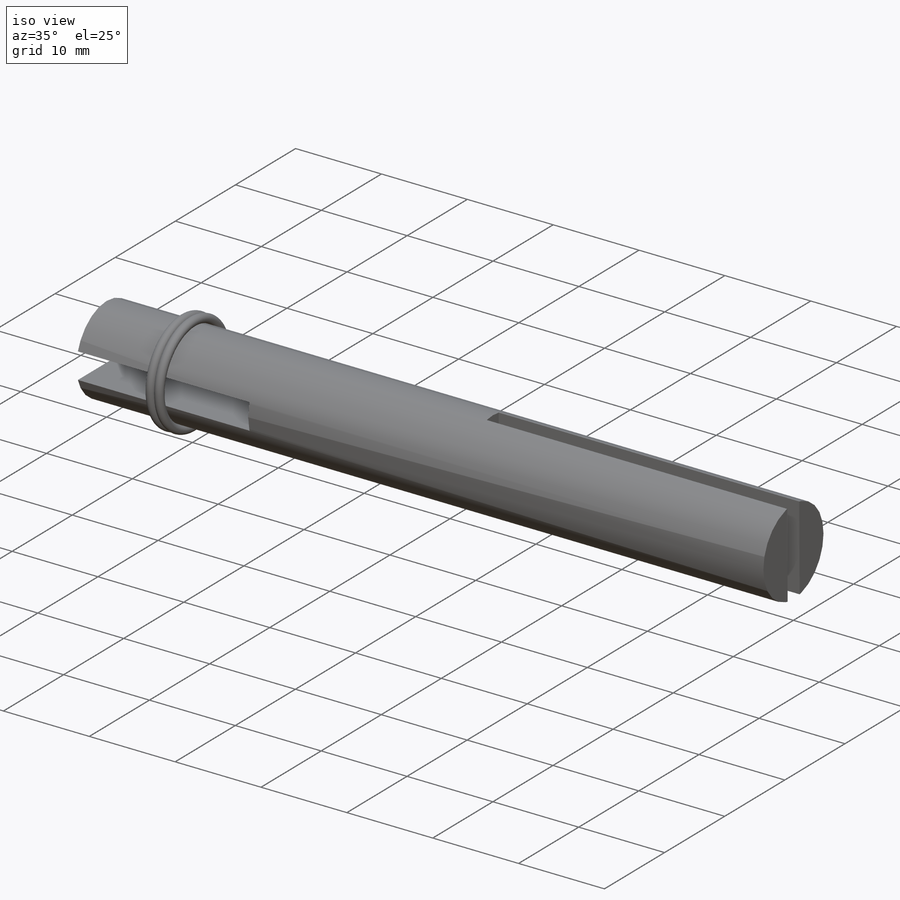
[diagram: iso view]
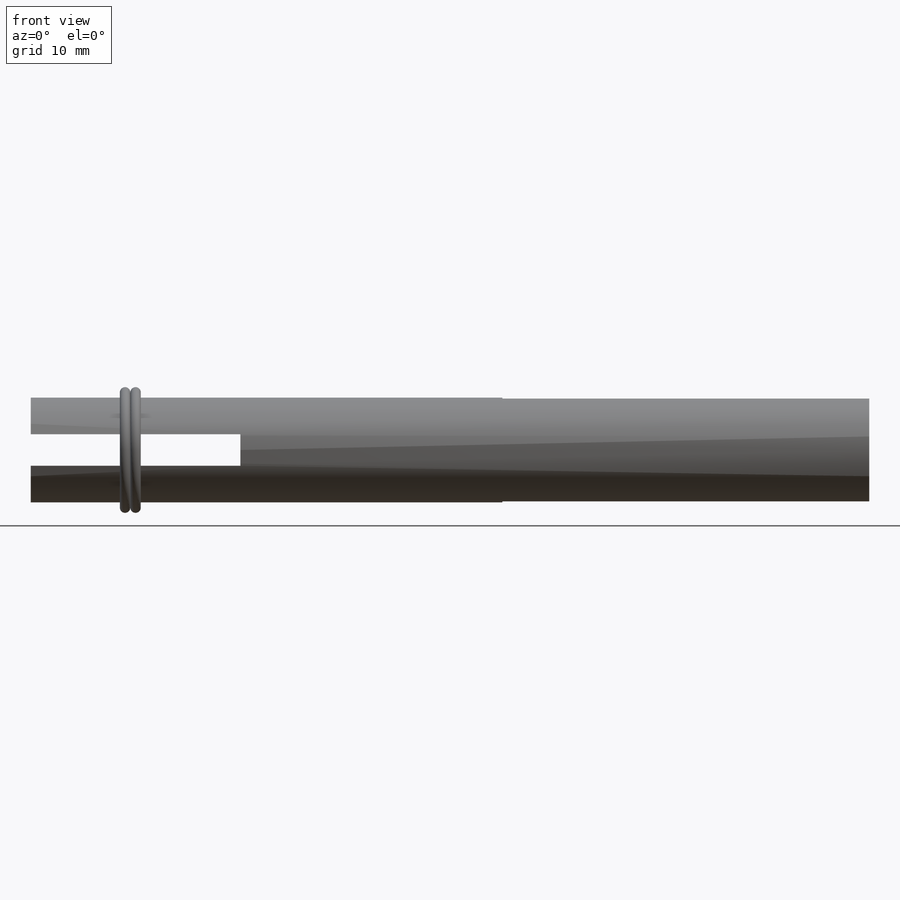
[diagram: front view]
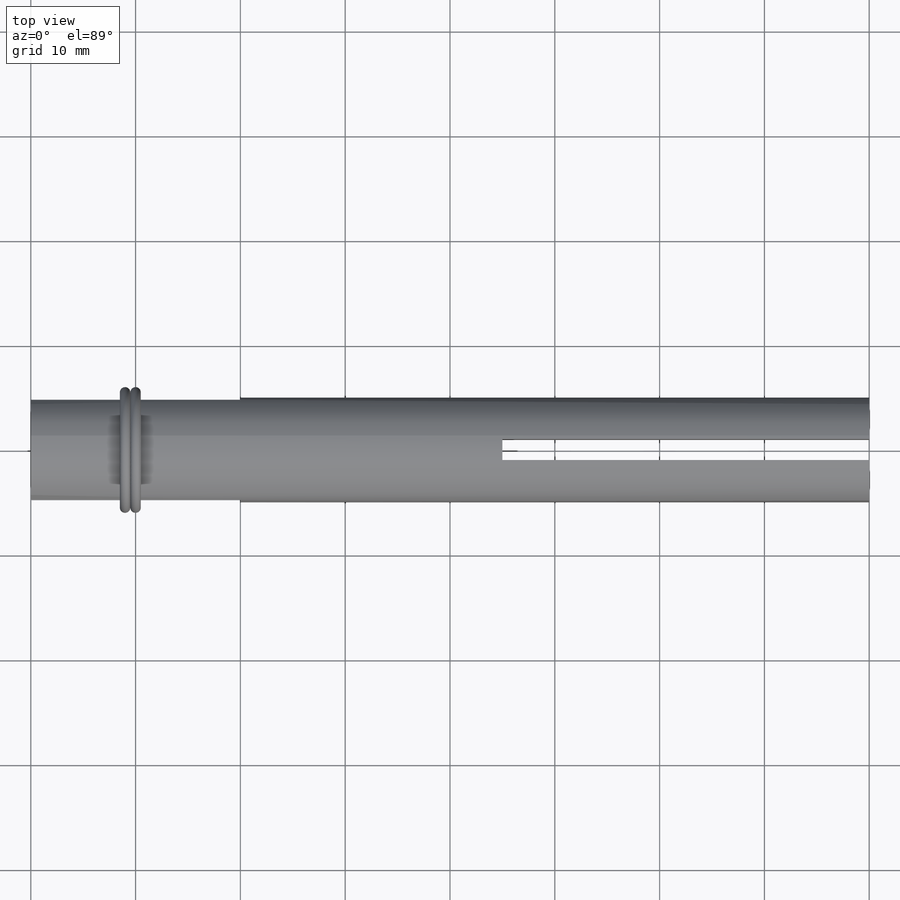
[diagram: top view]
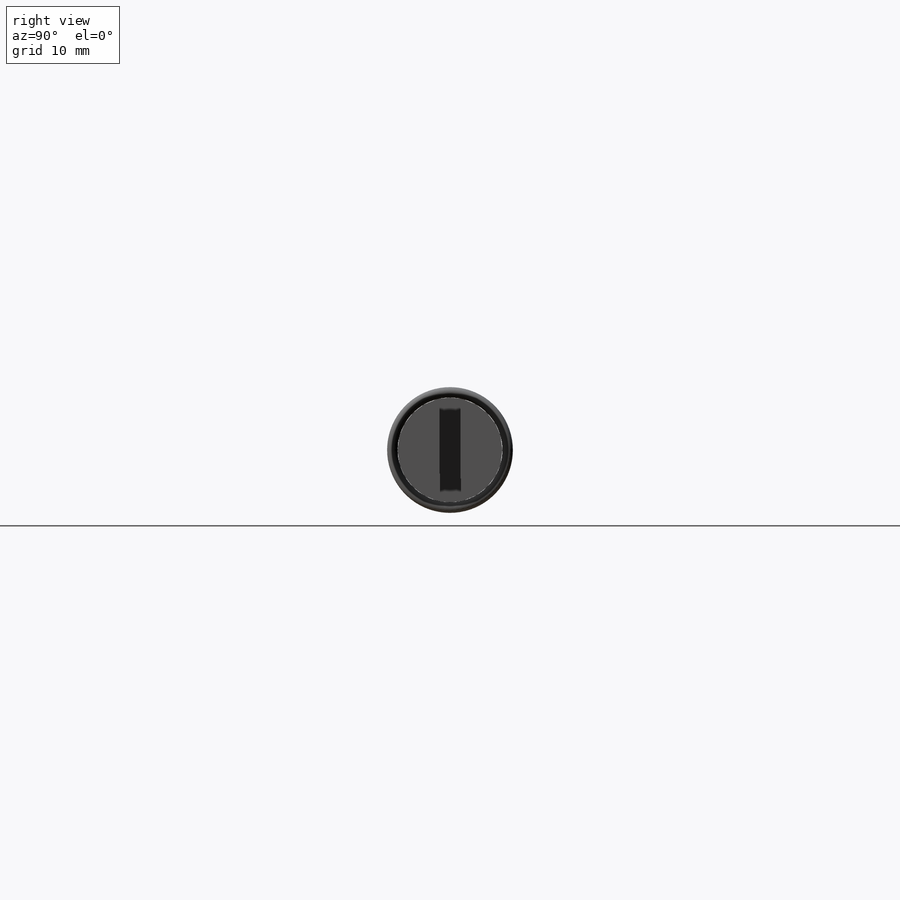
[diagram: right view]
SOLIDWORKS PART (.sldprt)
format: sldprt  version: not decoded by parser v0  size: 300,032 bytes
history: native  units: mm
features: plane x7, sketch x5, cut_extrude x2, material x1, extrude x1, mirror x1 (+9 scaffold rows collapsed)
feature tree (26):
  scaffold x9  (default folders/planes/origin — collapsed)
  material  "材质 <未指定>"
  plane  "前视基准面"
  plane  "上视基准面"
  plane  "右视基准面"
  sketch  "草图1"  dims[D1=10.0mm]
  extrude  "凸台-拉伸1"  Depth=80mm
  sketch  "草图2"  dims[D1=1.5mm D2=1.5mm D3=3.0mm]
  cut_extrude  "切除-拉伸1"  Depth=20mm
  plane  "基准面1"
  sketch  "草图3"  dims[c1.D1=1.0mm c1.D2=1.0mm c1.D3=12.0mm c1.D4=12.0mm c1.D5=2.0mm c1.D6=2.0mm c2.D1=~11.999694mm]
  cut_extrude  "切除-拉伸2"  Depth=35mm
  plane  "基准面2"  Offset=10mm
  sketch  "草图4"  dims[D1=11.0mm]
  sketch  "草图5"  dims[D1=1.0mm]
  plane  "基准面4"  Offset=9.5mm
  mirror  "镜向2"
  plane  "基准面5"
decode coverage: 8 of 9 modeling features carry decoded parameters
note: ~ marks probable driven/reference dimensions
note: suppression state not decoded; provenance and decode notes live in map.json
